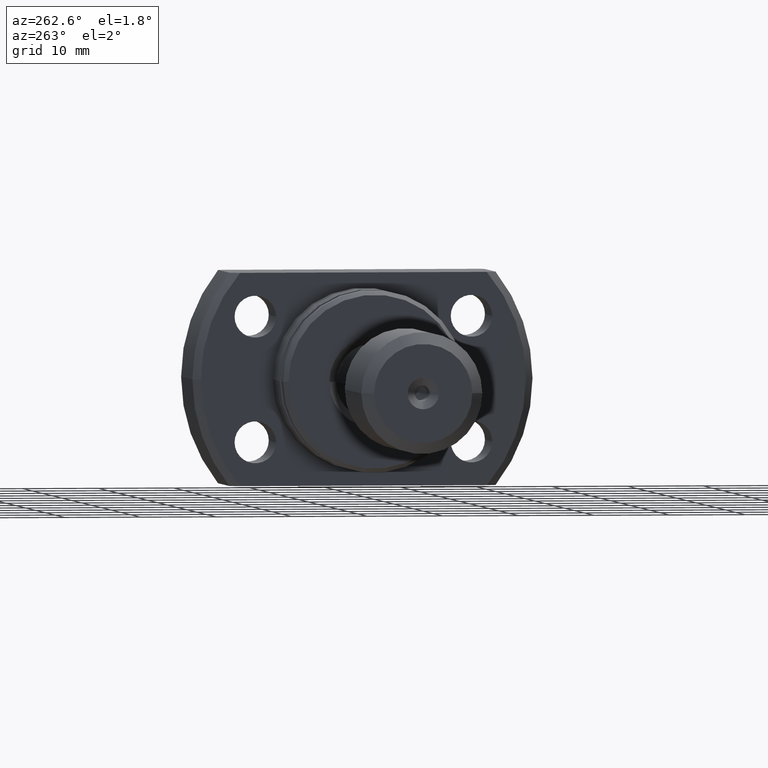
[diagram: clean part render]
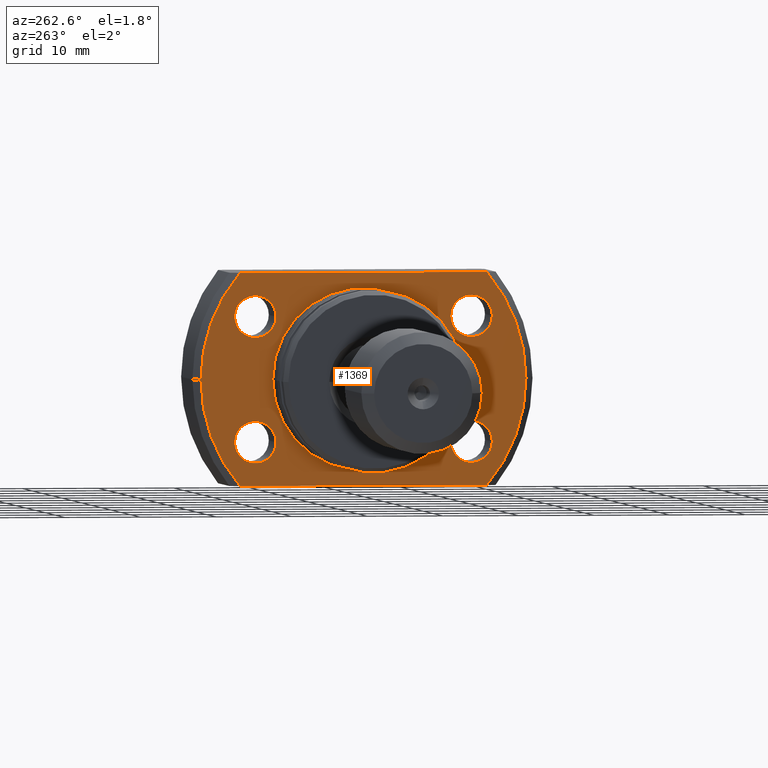
[diagram: same view with one face highlighted and labeled with its STEP entity id]
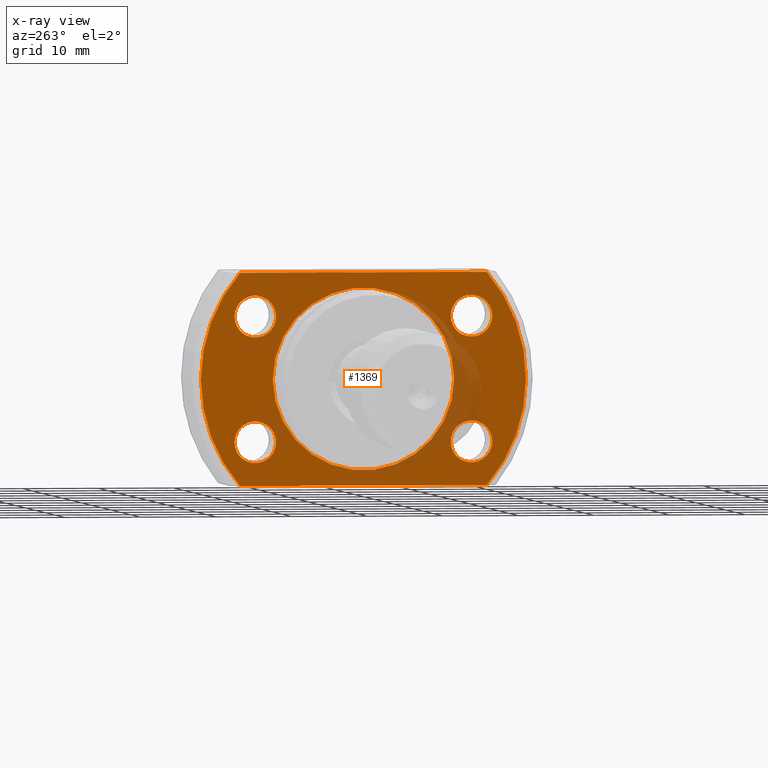
[diagram: x-ray of the same camera — body ghosted, the highlighted face saturated]
A machine part, auxiliary view. The second image highlights one B-rep face of the part: STEP entity #1369.
The next image is the same camera in x-ray: the body ghosted, the highlighted face saturated — about 10% of this face is hidden behind the body in this view.
In plain terms, the highlighted planar face has unit normal (1, 0, 0).
Its self-contained STEP definition (entity closure, byte-faithful):
#18 = AXIS2_PLACEMENT_3D ( 'NONE', #1276, #1019, #2260 ) ;
#41 = EDGE_CURVE ( 'NONE', #2735, #164, #2756, .T. ) ;
#48 = CARTESIAN_POINT ( 'NONE',  ( 11.49999999999978506, 17.04999999999967386, 8.250000000000003553 ) ) ;
#108 = ORIENTED_EDGE ( 'NONE', *, *, #1618, .F. ) ;
#122 = CARTESIAN_POINT ( 'NONE',  ( 11.49999999999978506, -17.05000000000032756, 8.250000000000003553 ) ) ;
#129 = AXIS2_PLACEMENT_3D ( 'NONE', #230, #267, #2473 ) ;
#159 = DIRECTION ( 'NONE',  ( 1.000000000000000000, 4.998558363877804092E-19, -0.000000000000000000 ) ) ;
#164 = VERTEX_POINT ( 'NONE', #1675 ) ;
#167 = ORIENTED_EDGE ( 'NONE', *, *, #2275, .T. ) ;
#199 = AXIS2_PLACEMENT_3D ( 'NONE', #2543, #1911, #3117 ) ;
#219 = EDGE_CURVE ( 'NONE', #3157, #1316, #2853, .T. ) ;
#226 = EDGE_LOOP ( 'NONE', ( #1986, #882 ) ) ;
#230 = CARTESIAN_POINT ( 'NONE',  ( 11.49999999999978506, 14.29999999999967208, 8.250000000000003553 ) ) ;
#262 = CARTESIAN_POINT ( 'NONE',  ( 11.49999999999978506, -11.99999999999999467, -14.00000000000000355 ) ) ;
#267 = DIRECTION ( 'NONE',  ( 1.000000000000000000, 4.998558363877804092E-19, -0.000000000000000000 ) ) ;
#269 = CARTESIAN_POINT ( 'NONE',  ( 11.49999999999978506, -14.30000000000032401, -8.249999999999996447 ) ) ;
#315 = CARTESIAN_POINT ( 'NONE',  ( 11.49999999999978506, 14.29999999999967031, -8.249999999999996447 ) ) ;
#320 = VERTEX_POINT ( 'NONE', #562 ) ;
#327 = DIRECTION ( 'NONE',  ( 0.000000000000000000, 1.000000000000000000, 0.000000000000000000 ) ) ;
#338 = VERTEX_POINT ( 'NONE', #777 ) ;
#392 = ORIENTED_EDGE ( 'NONE', *, *, #219, .T. ) ;
#412 = DIRECTION ( 'NONE',  ( 0.000000000000000000, 1.000000000000000000, 0.000000000000000000 ) ) ;
#415 = AXIS2_PLACEMENT_3D ( 'NONE', #1263, #1451, #1696 ) ;
#434 = EDGE_CURVE ( 'NONE', #1584, #2216, #1624, .T. ) ;
#470 = CARTESIAN_POINT ( 'NONE',  ( 11.49999999999978506, -14.30000000000032756, 8.250000000000003553 ) ) ;
#508 = CARTESIAN_POINT ( 'NONE',  ( 11.49999999999978506, 14.29999999999967031, -8.249999999999996447 ) ) ;
#529 = VERTEX_POINT ( 'NONE', #2164 ) ;
#562 = CARTESIAN_POINT ( 'NONE',  ( 11.49999999999978861, 21.49999999999992184, 0.000000000000000000 ) ) ;
#584 = ORIENTED_EDGE ( 'NONE', *, *, #2750, .T. ) ;
#621 = VERTEX_POINT ( 'NONE', #947 ) ;
#634 = VERTEX_POINT ( 'NONE', #1158 ) ;
#641 = EDGE_LOOP ( 'NONE', ( #167, #1310 ) ) ;
#694 = ORIENTED_EDGE ( 'NONE', *, *, #796, .F. ) ;
#698 = FACE_BOUND ( 'NONE', #1362, .T. ) ;
#775 = AXIS2_PLACEMENT_3D ( 'NONE', #2089, #159, #2157 ) ;
#777 = CARTESIAN_POINT ( 'NONE',  ( 11.49999999999978506, 17.04999999999967031, -8.249999999999996447 ) ) ;
#785 = DIRECTION ( 'NONE',  ( 4.998558363877804092E-19, -1.000000000000000000, 0.000000000000000000 ) ) ;
#796 = EDGE_CURVE ( 'NONE', #320, #1584, #2140, .T. ) ;
#803 = CARTESIAN_POINT ( 'NONE',  ( 11.49999999999978861, 16.31716887208061095, 14.00000000000000355 ) ) ;
#873 = VECTOR ( 'NONE', #2611, 1000.000000000000000 ) ;
#877 = DIRECTION ( 'NONE',  ( 1.000000000000000000, 4.998558363877804092E-19, -0.000000000000000000 ) ) ;
#882 = ORIENTED_EDGE ( 'NONE', *, *, #2512, .T. ) ;
#947 = CARTESIAN_POINT ( 'NONE',  ( 11.49999999999978506, 11.54999999999967208, -8.249999999999996447 ) ) ;
#948 = VERTEX_POINT ( 'NONE', #1723 ) ;
#967 = CIRCLE ( 'NONE', #1494, 21.49999999999992184 ) ;
#995 = LINE ( 'NONE', #262, #3223 ) ;
#999 = CIRCLE ( 'NONE', #415, 2.749999999999997335 ) ;
#1019 = DIRECTION ( 'NONE',  ( 1.000000000000000000, 4.998558363877804092E-19, -0.000000000000000000 ) ) ;
#1043 = CIRCLE ( 'NONE', #1092, 2.749999999999999112 ) ;
#1068 = DIRECTION ( 'NONE',  ( 1.000000000000000000, 4.998558363877804092E-19, -0.000000000000000000 ) ) ;
#1092 = AXIS2_PLACEMENT_3D ( 'NONE', #315, #1643, #412 ) ;
#1107 = DIRECTION ( 'NONE',  ( 0.000000000000000000, 1.000000000000000000, 0.000000000000000000 ) ) ;
#1158 = CARTESIAN_POINT ( 'NONE',  ( 11.49999999999978506, 11.54999999999967208, 8.250000000000003553 ) ) ;
#1167 = FACE_BOUND ( 'NONE', #641, .T. ) ;
#1172 = VERTEX_POINT ( 'NONE', #1715 ) ;
#1238 = DIRECTION ( 'NONE',  ( 0.000000000000000000, 1.000000000000000000, 0.000000000000000000 ) ) ;
#1240 = CIRCLE ( 'NONE', #2326, 11.99999999999999467 ) ;
#1263 = CARTESIAN_POINT ( 'NONE',  ( 11.49999999999978506, -14.30000000000032401, -8.249999999999996447 ) ) ;
#1269 = EDGE_CURVE ( 'NONE', #621, #338, #1043, .T. ) ;
#1276 = CARTESIAN_POINT ( 'NONE',  ( 11.49999999999978861, 5.748342118459368684E-18, 0.000000000000000000 ) ) ;
#1288 = CIRCLE ( 'NONE', #3101, 2.750000000000000888 ) ;
#1310 = ORIENTED_EDGE ( 'NONE', *, *, #1895, .T. ) ;
#1316 = VERTEX_POINT ( 'NONE', #122 ) ;
#1362 = EDGE_LOOP ( 'NONE', ( #392, #3016 ) ) ;
#1369 = ADVANCED_FACE ( 'NONE', ( #1167, #698, #2173, #2864, #2363, #2142 ), #1664, .F. ) ;
#1451 = DIRECTION ( 'NONE',  ( 1.000000000000000000, 4.998558363877804092E-19, -0.000000000000000000 ) ) ;
#1455 = EDGE_CURVE ( 'NONE', #3175, #1172, #999, .T. ) ;
#1465 = CARTESIAN_POINT ( 'NONE',  ( 11.49999999999978506, -14.30000000000032756, 8.250000000000003553 ) ) ;
#1494 = AXIS2_PLACEMENT_3D ( 'NONE', #3027, #2039, #327 ) ;
#1507 = DIRECTION ( 'NONE',  ( 0.000000000000000000, 1.000000000000000000, 0.000000000000000000 ) ) ;
#1510 = EDGE_CURVE ( 'NONE', #529, #320, #2002, .T. ) ;
#1560 = CARTESIAN_POINT ( 'NONE',  ( 11.49999999999978506, -11.55000000000032756, 8.250000000000003553 ) ) ;
#1584 = VERTEX_POINT ( 'NONE', #803 ) ;
#1602 = CIRCLE ( 'NONE', #2638, 2.749999999999999112 ) ;
#1618 = EDGE_CURVE ( 'NONE', #2216, #948, #967, .T. ) ;
#1624 = LINE ( 'NONE', #2820, #873 ) ;
#1643 = DIRECTION ( 'NONE',  ( 1.000000000000000000, 4.998558363877804092E-19, -0.000000000000000000 ) ) ;
#1661 = VERTEX_POINT ( 'NONE', #48 ) ;
#1664 = PLANE ( 'NONE',  #2457 ) ;
#1675 = CARTESIAN_POINT ( 'NONE',  ( 11.49999999999977973, -11.99999999999999467, 1.469576158976823356E-15 ) ) ;
#1696 = DIRECTION ( 'NONE',  ( 0.000000000000000000, 1.000000000000000000, 0.000000000000000000 ) ) ;
#1701 = CIRCLE ( 'NONE', #129, 2.750000000000000888 ) ;
#1713 = ORIENTED_EDGE ( 'NONE', *, *, #434, .F. ) ;
#1715 = CARTESIAN_POINT ( 'NONE',  ( 11.49999999999978506, -17.05000000000032045, -8.249999999999996447 ) ) ;
#1723 = CARTESIAN_POINT ( 'NONE',  ( 11.49999999999978684, -16.31716887208061095, -14.00000000000000355 ) ) ;
#1832 = DIRECTION ( 'NONE',  ( 0.000000000000000000, 1.000000000000000000, 0.000000000000000000 ) ) ;
#1865 = CIRCLE ( 'NONE', #3166, 2.750000000000000888 ) ;
#1879 = DIRECTION ( 'NONE',  ( -4.998558363877804092E-19, 1.000000000000000000, 0.000000000000000000 ) ) ;
#1895 = EDGE_CURVE ( 'NONE', #634, #1661, #1701, .T. ) ;
#1896 = ORIENTED_EDGE ( 'NONE', *, *, #1269, .T. ) ;
#1911 = DIRECTION ( 'NONE',  ( 1.000000000000000000, 4.998558363877804092E-19, -0.000000000000000000 ) ) ;
#1924 = AXIS2_PLACEMENT_3D ( 'NONE', #1465, #2459, #2960 ) ;
#1986 = ORIENTED_EDGE ( 'NONE', *, *, #41, .T. ) ;
#2002 = CIRCLE ( 'NONE', #18, 21.49999999999992184 ) ;
#2010 = DIRECTION ( 'NONE',  ( 1.000000000000000000, 4.998558363877804092E-19, -0.000000000000000000 ) ) ;
#2039 = DIRECTION ( 'NONE',  ( 1.000000000000000000, 4.998558363877804092E-19, -0.000000000000000000 ) ) ;
#2089 = CARTESIAN_POINT ( 'NONE',  ( 11.49999999999977973, 5.748342118459364061E-18, 0.000000000000000000 ) ) ;
#2131 = CARTESIAN_POINT ( 'NONE',  ( 11.49999999999978506, 14.29999999999967208, 8.250000000000003553 ) ) ;
#2134 = CARTESIAN_POINT ( 'NONE',  ( 11.49999999999978506, -11.55000000000032756, -8.249999999999996447 ) ) ;
#2140 = CIRCLE ( 'NONE', #199, 21.49999999999992184 ) ;
#2142 = FACE_OUTER_BOUND ( 'NONE', #2398, .T. ) ;
#2157 = DIRECTION ( 'NONE',  ( 0.000000000000000000, 1.000000000000000000, 0.000000000000000000 ) ) ;
#2164 = CARTESIAN_POINT ( 'NONE',  ( 11.49999999999978861, 16.31716887208061095, -14.00000000000000355 ) ) ;
#2173 = FACE_BOUND ( 'NONE', #2436, .T. ) ;
#2216 = VERTEX_POINT ( 'NONE', #3083 ) ;
#2222 = DIRECTION ( 'NONE',  ( 1.000000000000000000, 4.998558363877804092E-19, -0.000000000000000000 ) ) ;
#2260 = DIRECTION ( 'NONE',  ( 0.000000000000000000, 1.000000000000000000, 0.000000000000000000 ) ) ;
#2275 = EDGE_CURVE ( 'NONE', #1661, #634, #1288, .T. ) ;
#2303 = ORIENTED_EDGE ( 'NONE', *, *, #1510, .F. ) ;
#2326 = AXIS2_PLACEMENT_3D ( 'NONE', #2814, #1068, #1832 ) ;
#2340 = ORIENTED_EDGE ( 'NONE', *, *, #2664, .T. ) ;
#2363 = FACE_BOUND ( 'NONE', #226, .T. ) ;
#2398 = EDGE_LOOP ( 'NONE', ( #1713, #694, #2303, #2340, #108 ) ) ;
#2436 = EDGE_LOOP ( 'NONE', ( #3067, #2906 ) ) ;
#2457 = AXIS2_PLACEMENT_3D ( 'NONE', #2653, #3162, #1879 ) ;
#2459 = DIRECTION ( 'NONE',  ( 1.000000000000000000, 4.998558363877804092E-19, -0.000000000000000000 ) ) ;
#2473 = DIRECTION ( 'NONE',  ( 0.000000000000000000, 1.000000000000000000, 0.000000000000000000 ) ) ;
#2494 = CIRCLE ( 'NONE', #2691, 2.749999999999997335 ) ;
#2512 = EDGE_CURVE ( 'NONE', #164, #2735, #1240, .T. ) ;
#2543 = CARTESIAN_POINT ( 'NONE',  ( 11.49999999999978861, 5.748342118459368684E-18, 0.000000000000000000 ) ) ;
#2611 = DIRECTION ( 'NONE',  ( 4.998558363877804092E-19, -1.000000000000000000, 0.000000000000000000 ) ) ;
#2638 = AXIS2_PLACEMENT_3D ( 'NONE', #508, #2722, #1507 ) ;
#2653 = CARTESIAN_POINT ( 'NONE',  ( 11.49999999999978506, -11.99999999999999467, 0.000000000000000000 ) ) ;
#2664 = EDGE_CURVE ( 'NONE', #529, #948, #995, .T. ) ;
#2691 = AXIS2_PLACEMENT_3D ( 'NONE', #269, #2010, #2995 ) ;
#2722 = DIRECTION ( 'NONE',  ( 1.000000000000000000, 4.998558363877804092E-19, -0.000000000000000000 ) ) ;
#2735 = VERTEX_POINT ( 'NONE', #2970 ) ;
#2750 = EDGE_CURVE ( 'NONE', #338, #621, #1602, .T. ) ;
#2756 = CIRCLE ( 'NONE', #775, 11.99999999999999467 ) ;
#2814 = CARTESIAN_POINT ( 'NONE',  ( 11.49999999999977973, 5.748342118459364061E-18, 0.000000000000000000 ) ) ;
#2820 = CARTESIAN_POINT ( 'NONE',  ( 11.49999999999978506, -11.99999999999999467, 14.00000000000000355 ) ) ;
#2853 = CIRCLE ( 'NONE', #1924, 2.750000000000000888 ) ;
#2862 = EDGE_CURVE ( 'NONE', #1316, #3157, #1865, .T. ) ;
#2864 = FACE_BOUND ( 'NONE', #3204, .T. ) ;
#2906 = ORIENTED_EDGE ( 'NONE', *, *, #2973, .T. ) ;
#2960 = DIRECTION ( 'NONE',  ( 0.000000000000000000, 1.000000000000000000, 0.000000000000000000 ) ) ;
#2970 = CARTESIAN_POINT ( 'NONE',  ( 11.49999999999977973, 11.99999999999999467, 0.000000000000000000 ) ) ;
#2973 = EDGE_CURVE ( 'NONE', #1172, #3175, #2494, .T. ) ;
#2995 = DIRECTION ( 'NONE',  ( 0.000000000000000000, 1.000000000000000000, 0.000000000000000000 ) ) ;
#3016 = ORIENTED_EDGE ( 'NONE', *, *, #2862, .T. ) ;
#3027 = CARTESIAN_POINT ( 'NONE',  ( 11.49999999999978861, 5.748342118459368684E-18, 0.000000000000000000 ) ) ;
#3067 = ORIENTED_EDGE ( 'NONE', *, *, #1455, .T. ) ;
#3083 = CARTESIAN_POINT ( 'NONE',  ( 11.49999999999978684, -16.31716887208061095, 14.00000000000000355 ) ) ;
#3101 = AXIS2_PLACEMENT_3D ( 'NONE', #2131, #877, #1107 ) ;
#3117 = DIRECTION ( 'NONE',  ( 0.000000000000000000, 1.000000000000000000, 0.000000000000000000 ) ) ;
#3157 = VERTEX_POINT ( 'NONE', #1560 ) ;
#3162 = DIRECTION ( 'NONE',  ( 1.000000000000000000, 4.998558363877804092E-19, -0.000000000000000000 ) ) ;
#3166 = AXIS2_PLACEMENT_3D ( 'NONE', #470, #2222, #1238 ) ;
#3175 = VERTEX_POINT ( 'NONE', #2134 ) ;
#3204 = EDGE_LOOP ( 'NONE', ( #584, #1896 ) ) ;
#3223 = VECTOR ( 'NONE', #785, 1000.000000000000000 ) ;